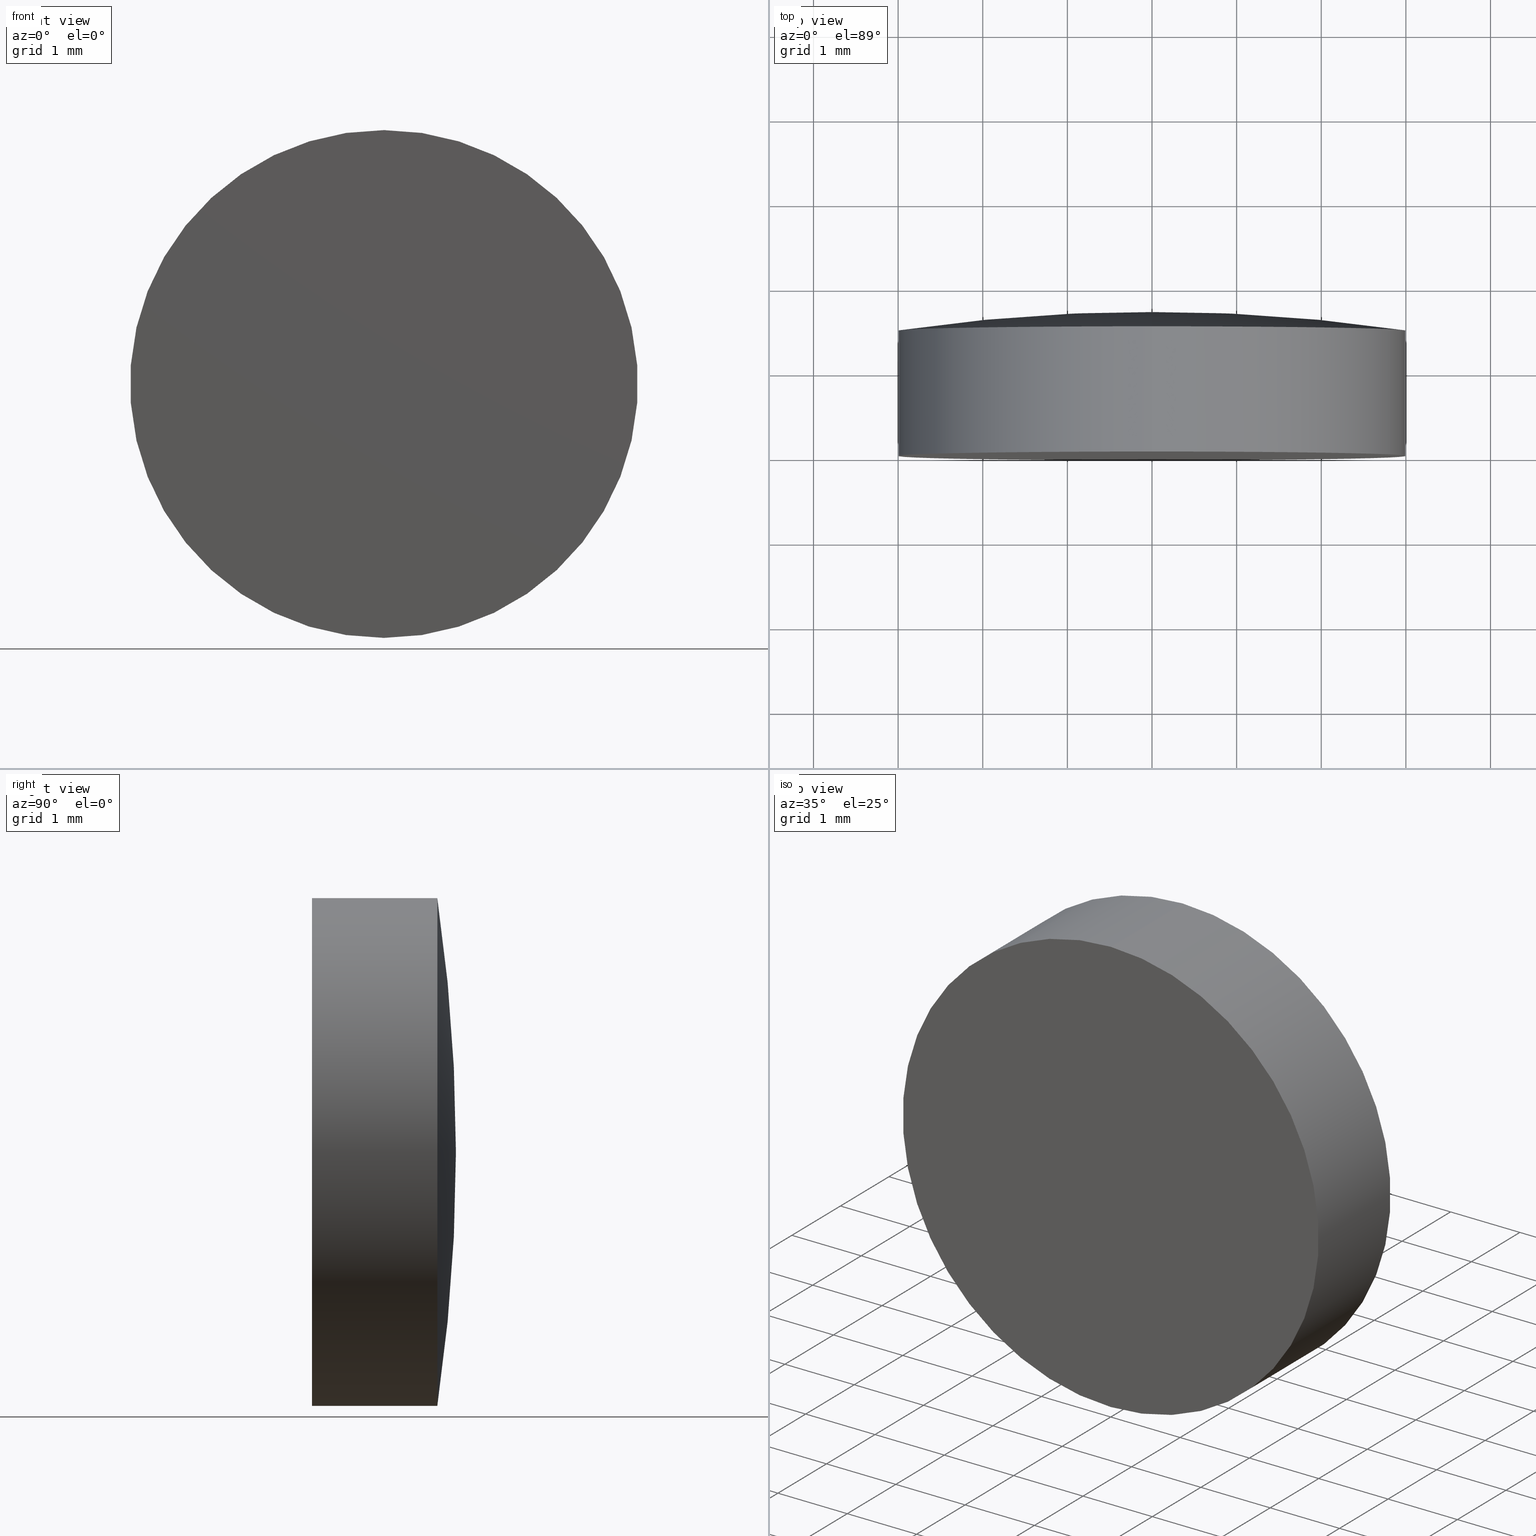
[diagram: canonical four-view strip — front | top / right | iso, engineering-drawing reading convention]
A machine part, canonical four-view strip (front | top / right | iso — engineering-drawing reading convention). The complete STEP part file that produces these views, byte-faithful:
ISO-10303-21;
HEADER;
FILE_DESCRIPTION (( 'STEP AP203' ),
    '1' );
FILE_NAME ('100588.STEP',
    '2024-05-10T01:37:37',
    ( '' ),
    ( '' ),
    'SwSTEP 2.0',
    'SolidWorks 2020',
    '' );
FILE_SCHEMA (( 'CONFIG_CONTROL_DESIGN' ));
ENDSEC;

DATA;
#1 = PERSON_AND_ORGANIZATION_ROLE ( 'design_supplier' ) ;
#2 = EDGE_CURVE ( 'NONE', #4, #166, #198, .T. ) ;
#3 = ADVANCED_FACE ( 'NONE', ( #87 ), #113, .T. ) ;
#4 = VERTEX_POINT ( 'NONE', #148 ) ;
#5 = TOROIDAL_SURFACE ( 'NONE', #186, -0.006266596937427003355, 20.64999999999999858 ) ;
#6 = CARTESIAN_POINT ( 'NONE',  ( -2.999999999999999556, -3.673940397442060361E-16, 3.000000000000000000 ) ) ;
#7 = CYLINDRICAL_SURFACE ( 'NONE', #141, 3.000000000000000000 ) ;
#8 = PERSON_AND_ORGANIZATION_ROLE ( 'creator' ) ;
#9 = PERSON ( 'δָ��', 'δָ��', 'δָ��', ('δָ��'), ('δָ��'), ('δָ��') ) ;
#10 = FACE_OUTER_BOUND ( 'NONE', #194, .T. ) ;
#11 = DIRECTION ( 'NONE',  ( 0.000000000000000000, 0.000000000000000000, 1.000000000000000000 ) ) ;
#12 = CALENDAR_DATE ( 2024, 10, 5 ) ;
#13 = APPROVAL_DATE_TIME ( #102, #134 ) ;
#14 = AXIS2_PLACEMENT_3D ( 'NONE', #116, #115, #101 ) ;
#15 = AXIS2_PLACEMENT_3D ( 'NONE', #171, #55, #103 ) ;
#16 = CC_DESIGN_PERSON_AND_ORGANIZATION_ASSIGNMENT ( #93, #191, ( #177 ) ) ;
#17 = ADVANCED_FACE ( 'NONE', ( #35 ), #51, .T. ) ;
#18 = DIRECTION ( 'NONE',  ( 1.000000000000000000, 0.000000000000000000, -1.224646799147353207E-16 ) ) ;
#19 = AXIS2_PLACEMENT_3D ( 'NONE', #189, #11, #140 ) ;
#20 = EDGE_LOOP ( 'NONE', ( #144, #39, #125 ) ) ;
#21 = DIRECTION ( 'NONE',  ( 0.000000000000000000, 0.000000000000000000, -1.000000000000000000 ) ) ;
#22 = DIRECTION ( 'NONE',  ( -0.000000000000000000, -1.000000000000000000, -0.000000000000000000 ) ) ;
#23 = APPROVAL_ROLE ( '' ) ;
#24 = DIRECTION ( 'NONE',  ( -0.000000000000000000, -1.000000000000000000, -0.000000000000000000 ) ) ;
#25 = APPROVAL ( #48, 'δָ��' ) ;
#26 = AXIS2_PLACEMENT_3D ( 'NONE', #164, #18, #84 ) ;
#27 =( NAMED_UNIT ( * ) SI_UNIT ( $, .STERADIAN. ) SOLID_ANGLE_UNIT ( ) );
#28 = APPROVAL_ROLE ( '' ) ;
#29 = CALENDAR_DATE ( 2024, 10, 5 ) ;
#30 = LOCAL_TIME ( 9, 37, 37.00000000000000000, #92 ) ;
#31 = CIRCLE ( 'NONE', #26, 20.64999999999999858 ) ;
#32 = CC_DESIGN_SECURITY_CLASSIFICATION ( #33, ( #181 ) ) ;
#33 = SECURITY_CLASSIFICATION ( '', '', #104 ) ;
#34 = ORIENTED_EDGE ( 'NONE', *, *, #192, .T. ) ;
#35 = FACE_OUTER_BOUND ( 'NONE', #129, .T. ) ;
#36 = DIRECTION ( 'NONE',  ( 0.000000000000000000, 0.000000000000000000, -1.000000000000000000 ) ) ;
#37 = CIRCLE ( 'NONE', #152, 20.64999999999999858 ) ;
#38 = LOCAL_TIME ( 9, 37, 37.00000000000000000, #120 ) ;
#39 = ORIENTED_EDGE ( 'NONE', *, *, #94, .T. ) ;
#40 = VERTEX_POINT ( 'NONE', #96 ) ;
#41 = DIRECTION ( 'NONE',  ( -0.000000000000000000, -1.000000000000000000, -0.000000000000000000 ) ) ;
#42 = APPROVAL_PERSON_ORGANIZATION ( #169, #25, #23 ) ;
#43 = CARTESIAN_POINT ( 'NONE',  ( -3.000000000000000000, -18.94999904914677558, 0.000000000000000000 ) ) ;
#44 = APPROVAL_ROLE ( '' ) ;
#45 = CARTESIAN_POINT ( 'NONE',  ( -2.999999999999999556, 0.000000000000000000, 3.000000000000000000 ) ) ;
#46 = COORDINATED_UNIVERSAL_TIME_OFFSET ( 8, 0, .AHEAD. ) ;
#47 = COORDINATED_UNIVERSAL_TIME_OFFSET ( 8, 0, .AHEAD. ) ;
#48 = APPROVAL_STATUS ( 'not_yet_approved' ) ;
#49 = AXIS2_PLACEMENT_3D ( 'NONE', #195, #100, #21 ) ;
#50 = APPROVAL ( #176, 'δָ��' ) ;
#51 = PLANE ( 'NONE',  #83 ) ;
#52 = VECTOR ( 'NONE', #64, 1000.000000000000000 ) ;
#53 = ORIENTED_EDGE ( 'NONE', *, *, #72, .F. ) ;
#54 = CARTESIAN_POINT ( 'NONE',  ( -3.000000000000000000, -3.673940397442060361E-16, -3.000000000000000000 ) ) ;
#55 = DIRECTION ( 'NONE',  ( -0.000000000000000000, -1.000000000000000000, -0.000000000000000000 ) ) ;
#56 = FACE_OUTER_BOUND ( 'NONE', #20, .T. ) ;
#57 = DATE_AND_TIME ( #12, #38 ) ;
#58 = EDGE_CURVE ( 'NONE', #40, #109, #31, .T. ) ;
#59 = CARTESIAN_POINT ( 'NONE',  ( -3.000000000000000000, 0.000000000000000000, 0.000000000000000000 ) ) ;
#60 = CIRCLE ( 'NONE', #112, 3.000000000000000000 ) ;
#61 = APPROVAL_STATUS ( 'not_yet_approved' ) ;
#62 = COORDINATED_UNIVERSAL_TIME_OFFSET ( 8, 0, .AHEAD. ) ;
#63 = EDGE_CURVE ( 'NONE', #109, #4, #108, .T. ) ;
#64 = DIRECTION ( 'NONE',  ( -0.000000000000000000, -1.000000000000000000, -0.000000000000000000 ) ) ;
#65 = LOCAL_TIME ( 9, 37, 37.00000000000000000, #62 ) ;
#66 = PRODUCT ( '100588', '100588', '', ( #133 ) ) ;
#67 = CARTESIAN_POINT ( 'NONE',  ( -3.000000000000000000, 1.479999999999999982, 0.000000000000000000 ) ) ;
#68 = ORIENTED_EDGE ( 'NONE', *, *, #58, .T. ) ;
#69 = ORIENTED_EDGE ( 'NONE', *, *, #2, .F. ) ;
#70 = DIRECTION ( 'NONE',  ( 0.000000000000000000, 0.000000000000000000, -1.000000000000000000 ) ) ;
#71 = CC_DESIGN_PERSON_AND_ORGANIZATION_ASSIGNMENT ( #74, #1, ( #181 ) ) ;
#72 = EDGE_CURVE ( 'NONE', #166, #146, #122, .T. ) ;
#73 = DIRECTION ( 'NONE',  ( 0.000000000000000000, 0.000000000000000000, -1.000000000000000000 ) ) ;
#74 = PERSON_AND_ORGANIZATION ( #9, #165 ) ;
#75 = DIRECTION ( 'NONE',  ( 0.000000000000000000, 0.000000000000000000, -1.000000000000000000 ) ) ;
#76 = DATE_TIME_ROLE ( 'creation_date' ) ;
#77 = CC_DESIGN_APPROVAL ( #25, ( #181 ) ) ;
#78 = CC_DESIGN_DATE_AND_TIME_ASSIGNMENT ( #57, #76, ( #177 ) ) ;
#79 = CC_DESIGN_PERSON_AND_ORGANIZATION_ASSIGNMENT ( #185, #138, ( #66 ) ) ;
#80 = TOROIDAL_SURFACE ( 'NONE', #14, -0.006266596937427003355, 20.64999999999999858 ) ;
#81 = MANIFOLD_SOLID_BREP ( '��ת1', #183 ) ;
#82 = LOCAL_TIME ( 9, 37, 37.00000000000000000, #47 ) ;
#83 = AXIS2_PLACEMENT_3D ( 'NONE', #110, #178, #36 ) ;
#84 = DIRECTION ( 'NONE',  ( -1.260089691992838106E-16, 0.000000000000000000, -1.000000000000000000 ) ) ;
#85 = ORIENTED_EDGE ( 'NONE', *, *, #97, .F. ) ;
#86 = ORIENTED_EDGE ( 'NONE', *, *, #192, .F. ) ;
#87 = FACE_OUTER_BOUND ( 'NONE', #142, .T. ) ;
#88 = CARTESIAN_POINT ( 'NONE',  ( -2.999999999999999556, 1.479999999999999316, 3.000000000000005773 ) ) ;
#89 = DATE_AND_TIME ( #136, #65 ) ;
#90 = DIRECTION ( 'NONE',  ( -1.000000000000000000, 0.000000000000000000, 0.000000000000000000 ) ) ;
#91 = PERSON_AND_ORGANIZATION ( #9, #165 ) ;
#92 = COORDINATED_UNIVERSAL_TIME_OFFSET ( 8, 0, .AHEAD. ) ;
#93 = PERSON_AND_ORGANIZATION ( #9, #165 ) ;
#94 = EDGE_CURVE ( 'NONE', #40, #4, #37, .T. ) ;
#95 = EDGE_LOOP ( 'NONE', ( #98, #68, #85 ) ) ;
#96 = CARTESIAN_POINT ( 'NONE',  ( -3.000000000000000000, 1.699999999999999512, 0.000000000000000000 ) ) ;
#97 = EDGE_CURVE ( 'NONE', #4, #109, #196, .T. ) ;
#98 = ORIENTED_EDGE ( 'NONE', *, *, #94, .F. ) ;
#99 = APPROVAL_PERSON_ORGANIZATION ( #156, #134, #44 ) ;
#100 = DIRECTION ( 'NONE',  ( -0.000000000000000000, -1.000000000000000000, -0.000000000000000000 ) ) ;
#101 = DIRECTION ( 'NONE',  ( 0.000000000000000000, 0.000000000000000000, -1.000000000000000000 ) ) ;
#102 = DATE_AND_TIME ( #118, #82 ) ;
#103 = DIRECTION ( 'NONE',  ( 0.000000000000000000, 0.000000000000000000, -1.000000000000000000 ) ) ;
#104 = SECURITY_CLASSIFICATION_LEVEL ( 'unclassified' ) ;
#105 = APPROVAL_PERSON_ORGANIZATION ( #107, #50, #28 ) ;
#106 = DATE_AND_TIME ( #119, #197 ) ;
#107 = PERSON_AND_ORGANIZATION ( #9, #165 ) ;
#108 = CIRCLE ( 'NONE', #163, 3.000000000000000000 ) ;
#109 = VERTEX_POINT ( 'NONE', #88 ) ;
#110 = CARTESIAN_POINT ( 'NONE',  ( 0.000000000000000000, -1.836970198721030181E-16, 0.000000000000000000 ) ) ;
#111 = ADVANCED_FACE ( 'NONE', ( #200 ), #80, .T. ) ;
#112 = AXIS2_PLACEMENT_3D ( 'NONE', #59, #22, #73 ) ;
#113 = CYLINDRICAL_SURFACE ( 'NONE', #49, 3.000000000000000000 ) ;
#114 = CARTESIAN_POINT ( 'NONE',  ( -3.000000000000000000, 1.479999999999999982, 0.000000000000000000 ) ) ;
#115 = DIRECTION ( 'NONE',  ( -0.000000000000000000, -1.000000000000000000, -0.000000000000000000 ) ) ;
#116 = CARTESIAN_POINT ( 'NONE',  ( -3.000000000000000000, -18.94999904914677558, 0.000000000000000000 ) ) ;
#117 = CC_DESIGN_PERSON_AND_ORGANIZATION_ASSIGNMENT ( #91, #154, ( #33 ) ) ;
#118 = CALENDAR_DATE ( 2024, 10, 5 ) ;
#119 = CALENDAR_DATE ( 2024, 10, 5 ) ;
#120 = COORDINATED_UNIVERSAL_TIME_OFFSET ( 8, 0, .AHEAD. ) ;
#121 = APPLICATION_CONTEXT ( 'configuration controlled 3d designs of mechanical parts and assemblies' ) ;
#122 = CIRCLE ( 'NONE', #15, 3.000000000000000000 ) ;
#123 = CC_DESIGN_APPROVAL ( #134, ( #177 ) ) ;
#124 = CC_DESIGN_DATE_AND_TIME_ASSIGNMENT ( #106, #175, ( #33 ) ) ;
#125 = ORIENTED_EDGE ( 'NONE', *, *, #63, .F. ) ;
#126 = ADVANCED_FACE ( 'NONE', ( #56 ), #5, .T. ) ;
#127 = DIRECTION ( 'NONE',  ( -0.000000000000000000, -1.000000000000000000, -0.000000000000000000 ) ) ;
#128 = APPLICATION_CONTEXT ( 'configuration controlled 3d designs of mechanical parts and assemblies' ) ;
#129 = EDGE_LOOP ( 'NONE', ( #167, #34 ) ) ;
#130 = CARTESIAN_POINT ( 'NONE',  ( -3.000000000000000000, -18.94999904914677558, 0.006266596937427003355 ) ) ;
#131 = DIRECTION ( 'NONE',  ( 0.000000000000000000, 0.000000000000000000, 1.000000000000000000 ) ) ;
#132 = DIRECTION ( 'NONE',  ( -0.000000000000000000, -1.000000000000000000, -0.000000000000000000 ) ) ;
#133 = MECHANICAL_CONTEXT ( 'NONE', #121, 'mechanical' ) ;
#134 = APPROVAL ( #61, 'δָ��' ) ;
#135 =( GEOMETRIC_REPRESENTATION_CONTEXT ( 3 ) GLOBAL_UNCERTAINTY_ASSIGNED_CONTEXT ( ( #190 ) ) GLOBAL_UNIT_ASSIGNED_CONTEXT ( ( #174, #158, #27 ) ) REPRESENTATION_CONTEXT ( 'NONE', 'WORKASPACE' ) );
#136 = CALENDAR_DATE ( 2024, 10, 5 ) ;
#137 = ADVANCED_BREP_SHAPE_REPRESENTATION ( '100588', ( #81, #19 ), #135 ) ;
#138 = PERSON_AND_ORGANIZATION_ROLE ( 'design_owner' ) ;
#139 = SHAPE_DEFINITION_REPRESENTATION ( #145, #137 ) ;
#140 = DIRECTION ( 'NONE',  ( 1.000000000000000000, 0.000000000000000000, 0.000000000000000000 ) ) ;
#141 = AXIS2_PLACEMENT_3D ( 'NONE', #168, #132, #201 ) ;
#142 = EDGE_LOOP ( 'NONE', ( #182, #180, #162, #86 ) ) ;
#143 = PRODUCT_RELATED_PRODUCT_CATEGORY ( 'detail', '', ( #66 ) ) ;
#144 = ORIENTED_EDGE ( 'NONE', *, *, #58, .F. ) ;
#145 = PRODUCT_DEFINITION_SHAPE ( 'NONE', 'NONE',  #177 ) ;
#146 = VERTEX_POINT ( 'NONE', #45 ) ;
#147 = ORIENTED_EDGE ( 'NONE', *, *, #97, .T. ) ;
#148 = CARTESIAN_POINT ( 'NONE',  ( -3.000000000000000000, 1.479999999999999316, -3.000000000000005773 ) ) ;
#149 = CARTESIAN_POINT ( 'NONE',  ( -3.000000000000000000, 0.000000000000000000, -3.000000000000000000 ) ) ;
#150 = PERSON_AND_ORGANIZATION ( #9, #165 ) ;
#151 = EDGE_CURVE ( 'NONE', #109, #146, #199, .T. ) ;
#152 = AXIS2_PLACEMENT_3D ( 'NONE', #130, #90, #131 ) ;
#153 = DIRECTION ( 'NONE',  ( 0.000000000000000000, 0.000000000000000000, -1.000000000000000000 ) ) ;
#154 = PERSON_AND_ORGANIZATION_ROLE ( 'classification_officer' ) ;
#155 = DESIGN_CONTEXT ( 'detailed design', #128, 'design' ) ;
#156 = PERSON_AND_ORGANIZATION ( #9, #165 ) ;
#157 = VECTOR ( 'NONE', #41, 1000.000000000000000 ) ;
#158 =( NAMED_UNIT ( * ) PLANE_ANGLE_UNIT ( ) SI_UNIT ( $, .RADIAN. ) );
#159 = DATE_AND_TIME ( #29, #30 ) ;
#160 = CC_DESIGN_PERSON_AND_ORGANIZATION_ASSIGNMENT ( #150, #8, ( #181 ) ) ;
#161 = APPROVAL_DATE_TIME ( #159, #50 ) ;
#162 = ORIENTED_EDGE ( 'NONE', *, *, #2, .T. ) ;
#163 = AXIS2_PLACEMENT_3D ( 'NONE', #67, #127, #70 ) ;
#164 = CARTESIAN_POINT ( 'NONE',  ( -3.000000000000000000, -18.94999904914677558, -0.006266596937427003355 ) ) ;
#165 = ORGANIZATION ( 'δָ��', 'δָ��', '' ) ;
#166 = VERTEX_POINT ( 'NONE', #149 ) ;
#167 = ORIENTED_EDGE ( 'NONE', *, *, #72, .T. ) ;
#168 = CARTESIAN_POINT ( 'NONE',  ( -3.000000000000000000, -3.673940397442060361E-16, 0.000000000000000000 ) ) ;
#169 = PERSON_AND_ORGANIZATION ( #9, #165 ) ;
#170 = ADVANCED_FACE ( 'NONE', ( #10 ), #7, .T. ) ;
#171 = CARTESIAN_POINT ( 'NONE',  ( -3.000000000000000000, 0.000000000000000000, 0.000000000000000000 ) ) ;
#172 = APPLICATION_PROTOCOL_DEFINITION ( 'international standard', 'config_control_design', 1994, #128 ) ;
#173 = AXIS2_PLACEMENT_3D ( 'NONE', #114, #24, #153 ) ;
#174 =( LENGTH_UNIT ( ) NAMED_UNIT ( * ) SI_UNIT ( .MILLI., .METRE. ) );
#175 = DATE_TIME_ROLE ( 'classification_date' ) ;
#176 = APPROVAL_STATUS ( 'not_yet_approved' ) ;
#177 = PRODUCT_DEFINITION ( 'δ֪', '', #181, #155 ) ;
#178 = DIRECTION ( 'NONE',  ( 0.000000000000000000, -1.000000000000000000, -0.000000000000000000 ) ) ;
#179 = ORIENTED_EDGE ( 'NONE', *, *, #151, .T. ) ;
#180 = ORIENTED_EDGE ( 'NONE', *, *, #63, .T. ) ;
#181 = PRODUCT_DEFINITION_FORMATION_WITH_SPECIFIED_SOURCE ( '�κ�', '', #66, .NOT_KNOWN. ) ;
#182 = ORIENTED_EDGE ( 'NONE', *, *, #151, .F. ) ;
#183 = CLOSED_SHELL ( 'NONE', ( #170, #111, #126, #3, #17 ) ) ;
#184 = APPLICATION_PROTOCOL_DEFINITION ( 'international standard', 'config_control_design', 1994, #121 ) ;
#185 = PERSON_AND_ORGANIZATION ( #9, #165 ) ;
#186 = AXIS2_PLACEMENT_3D ( 'NONE', #43, #187, #75 ) ;
#187 = DIRECTION ( 'NONE',  ( -0.000000000000000000, -1.000000000000000000, -0.000000000000000000 ) ) ;
#188 = APPROVAL_DATE_TIME ( #89, #25 ) ;
#189 = CARTESIAN_POINT ( 'NONE',  ( 0.000000000000000000, 0.000000000000000000, 0.000000000000000000 ) ) ;
#190 = UNCERTAINTY_MEASURE_WITH_UNIT (LENGTH_MEASURE( 1.000000000000000082E-05 ), #174, 'distance_accuracy_value', 'NONE');
#191 = PERSON_AND_ORGANIZATION_ROLE ( 'creator' ) ;
#192 = EDGE_CURVE ( 'NONE', #146, #166, #60, .T. ) ;
#193 = CC_DESIGN_APPROVAL ( #50, ( #33 ) ) ;
#194 = EDGE_LOOP ( 'NONE', ( #147, #179, #53, #69 ) ) ;
#195 = CARTESIAN_POINT ( 'NONE',  ( -3.000000000000000000, -3.673940397442060361E-16, 0.000000000000000000 ) ) ;
#196 = CIRCLE ( 'NONE', #173, 3.000000000000000000 ) ;
#197 = LOCAL_TIME ( 9, 37, 37.00000000000000000, #46 ) ;
#198 = LINE ( 'NONE', #54, #52 ) ;
#199 = LINE ( 'NONE', #6, #157 ) ;
#200 = FACE_OUTER_BOUND ( 'NONE', #95, .T. ) ;
#201 = DIRECTION ( 'NONE',  ( 0.000000000000000000, 0.000000000000000000, -1.000000000000000000 ) ) ;
ENDSEC;
END-ISO-10303-21;
